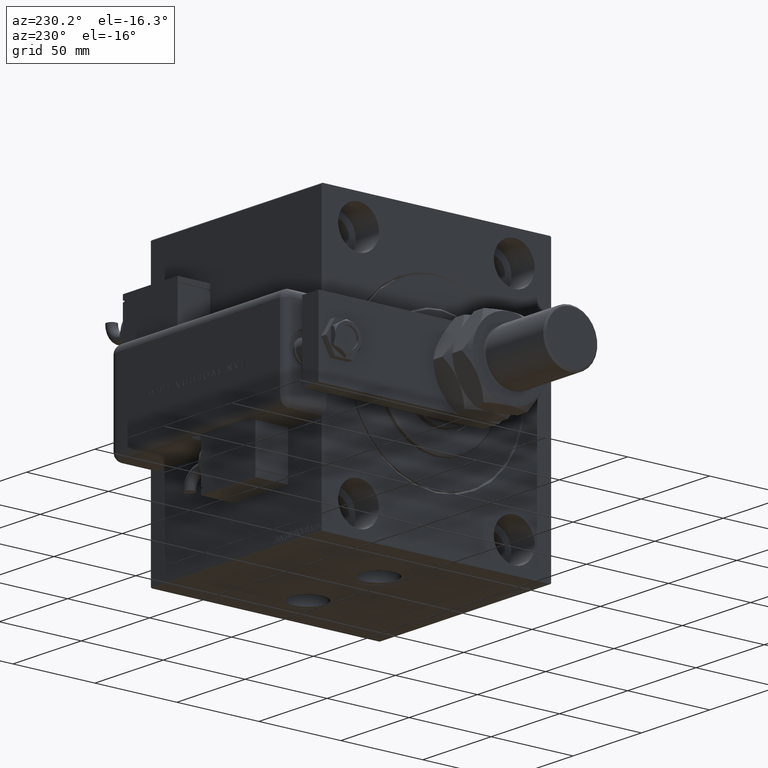
[diagram: clean part render]
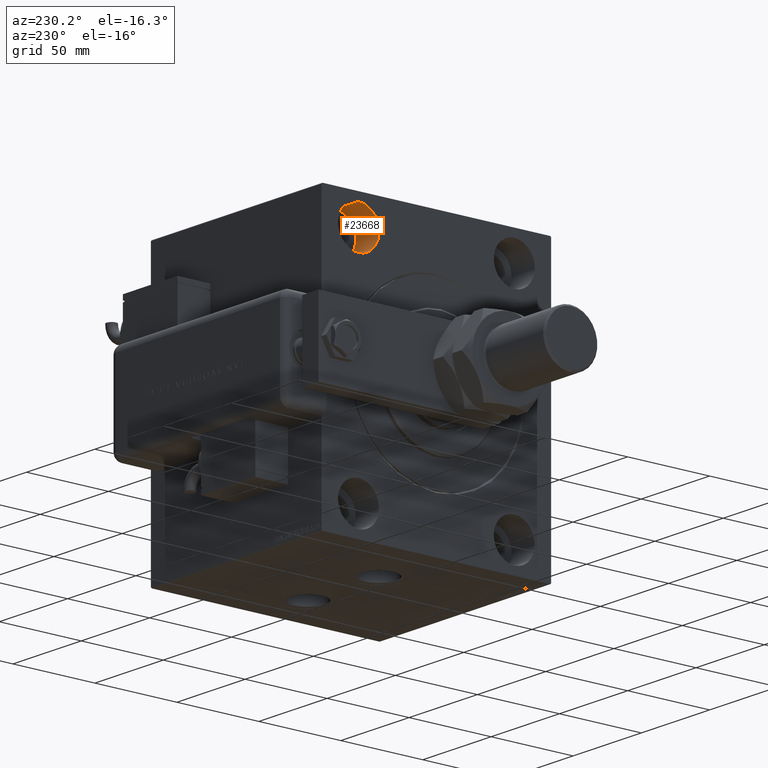
[diagram: same view with one face highlighted and labeled with its STEP entity id]
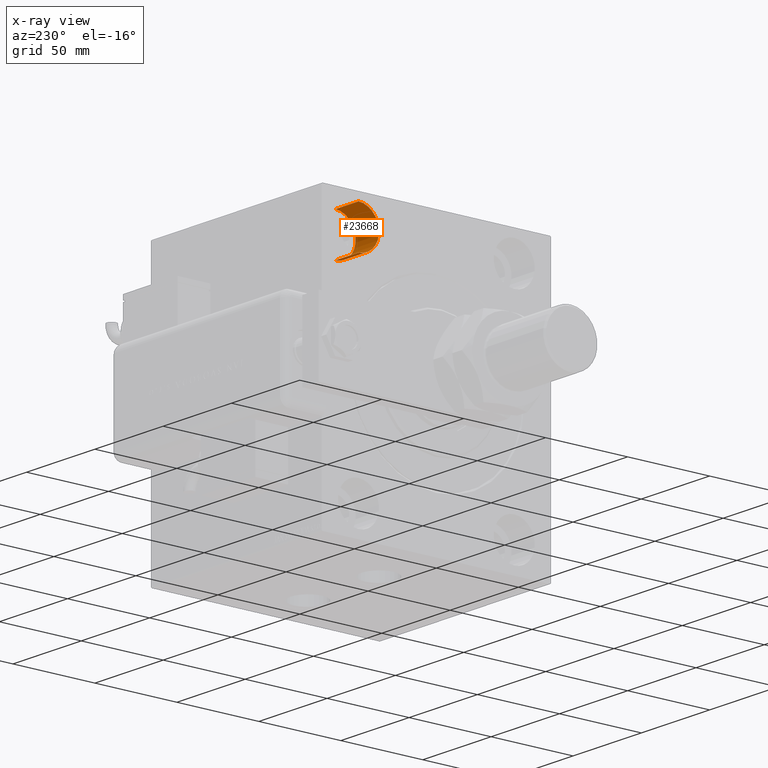
[diagram: x-ray of the same camera — body ghosted, the highlighted face saturated]
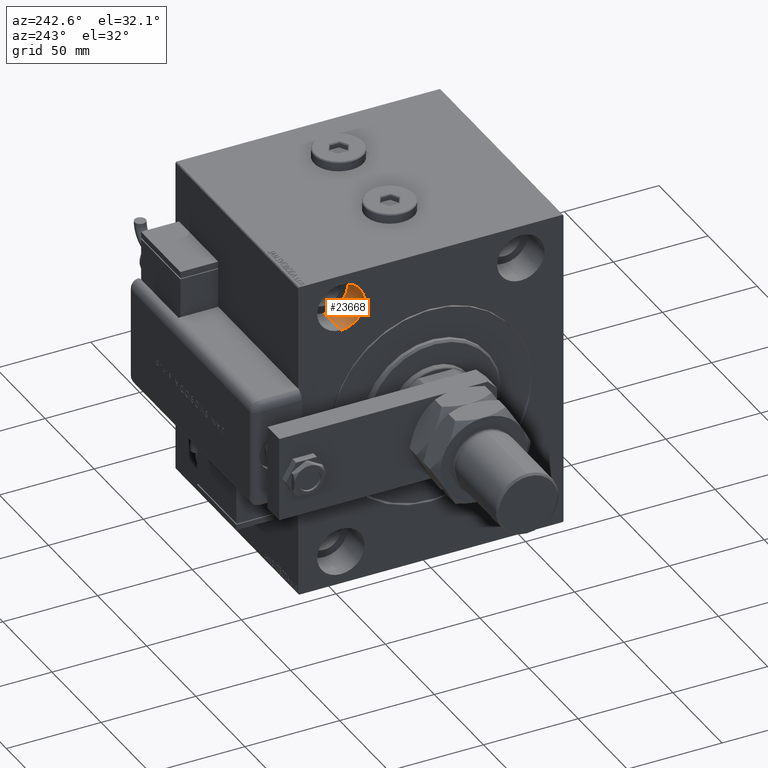
[diagram: same view with one face highlighted and labeled with its STEP entity id]
A machine part, auxiliary view. The second image highlights one B-rep face of the part: STEP entity #23668.
The next image is the same camera in x-ray: the body ghosted, the highlighted face saturated — about 0% of this face is hidden behind the body in this view.
A second angle (auxiliary view) of the same face is appended — the face is thin or edge-on in the first view.
In plain terms, the highlighted cylindrical surface (edge-blend (fillet) strip) has radius 12.5 mm, axis along (-1, -0, -0).
Its self-contained STEP definition (entity closure, byte-faithful):
#3241 = DIRECTION ( 'NONE',  ( -1.000000000000000000, 0.000000000000000000, 0.000000000000000000 ) ) ;
#3880 = EDGE_CURVE ( 'NONE', #46574, #19106, #55139, .T. ) ;
#4844 = CYLINDRICAL_SURFACE ( 'NONE', #18364, 12.50000000000001066 ) ;
#6483 = ORIENTED_EDGE ( 'NONE', *, *, #17737, .T. ) ;
#7207 = AXIS2_PLACEMENT_3D ( 'NONE', #18414, #3241, #9242 ) ;
#9177 = EDGE_LOOP ( 'NONE', ( #61646, #28110, #6483, #41238 ) ) ;
#9242 = DIRECTION ( 'NONE',  ( 0.000000000000000000, 0.000000000000000000, 1.000000000000000000 ) ) ;
#12331 = VERTEX_POINT ( 'NONE', #54237 ) ;
#12703 = CARTESIAN_POINT ( 'NONE',  ( 17.00000000000000000, 47.50000000000000711, 80.00000000000001421 ) ) ;
#14768 = CARTESIAN_POINT ( 'NONE',  ( 0.000000000000000000, 47.50000000000000711, 55.00000000000000000 ) ) ;
#17343 = CARTESIAN_POINT ( 'NONE',  ( 17.00000000000000000, 47.50000000000000711, 80.00000000000001421 ) ) ;
#17688 = DIRECTION ( 'NONE',  ( -1.000000000000000000, 0.000000000000000000, 0.000000000000000000 ) ) ;
#17737 = EDGE_CURVE ( 'NONE', #18554, #19106, #34479, .T. ) ;
#18364 = AXIS2_PLACEMENT_3D ( 'NONE', #18762, #28564, #38073 ) ;
#18414 = CARTESIAN_POINT ( 'NONE',  ( 0.000000000000000000, 47.50000000000000711, 67.50000000000000000 ) ) ;
#18554 = VERTEX_POINT ( 'NONE', #14768 ) ;
#18762 = CARTESIAN_POINT ( 'NONE',  ( 17.00000000000000000, 47.50000000000000711, 67.50000000000000000 ) ) ;
#19106 = VERTEX_POINT ( 'NONE', #49954 ) ;
#22210 = DIRECTION ( 'NONE',  ( -1.000000000000000000, -0.000000000000000000, -0.000000000000000000 ) ) ;
#23668 = ADVANCED_FACE ( 'NONE', ( #57698 ), #4844, .F. ) ;
#28110 = ORIENTED_EDGE ( 'NONE', *, *, #61835, .T. ) ;
#28564 = DIRECTION ( 'NONE',  ( -1.000000000000000000, -0.000000000000000000, -0.000000000000000000 ) ) ;
#30403 = AXIS2_PLACEMENT_3D ( 'NONE', #33177, #17688, #56305 ) ;
#33177 = CARTESIAN_POINT ( 'NONE',  ( 17.00000000000000000, 47.50000000000000711, 67.50000000000000000 ) ) ;
#34479 = CIRCLE ( 'NONE', #7207, 12.50000000000001066 ) ;
#36250 = VECTOR ( 'NONE', #58409, 1000.000000000000000 ) ;
#37932 = LINE ( 'NONE', #52184, #36250 ) ;
#38073 = DIRECTION ( 'NONE',  ( 0.000000000000000000, 0.000000000000000000, 1.000000000000000000 ) ) ;
#38103 = VECTOR ( 'NONE', #22210, 1000.000000000000000 ) ;
#41238 = ORIENTED_EDGE ( 'NONE', *, *, #3880, .F. ) ;
#44685 = EDGE_CURVE ( 'NONE', #12331, #46574, #57721, .T. ) ;
#46574 = VERTEX_POINT ( 'NONE', #17343 ) ;
#49954 = CARTESIAN_POINT ( 'NONE',  ( 0.000000000000000000, 47.50000000000000711, 80.00000000000001421 ) ) ;
#52184 = CARTESIAN_POINT ( 'NONE',  ( 17.00000000000000000, 47.50000000000000711, 55.00000000000000000 ) ) ;
#54237 = CARTESIAN_POINT ( 'NONE',  ( 17.00000000000000000, 47.50000000000000711, 55.00000000000000000 ) ) ;
#55139 = LINE ( 'NONE', #12703, #38103 ) ;
#56305 = DIRECTION ( 'NONE',  ( 0.000000000000000000, 0.000000000000000000, 1.000000000000000000 ) ) ;
#57698 = FACE_OUTER_BOUND ( 'NONE', #9177, .T. ) ;
#57721 = CIRCLE ( 'NONE', #30403, 12.50000000000001066 ) ;
#58409 = DIRECTION ( 'NONE',  ( -1.000000000000000000, -0.000000000000000000, -0.000000000000000000 ) ) ;
#61646 = ORIENTED_EDGE ( 'NONE', *, *, #44685, .F. ) ;
#61835 = EDGE_CURVE ( 'NONE', #12331, #18554, #37932, .T. ) ;